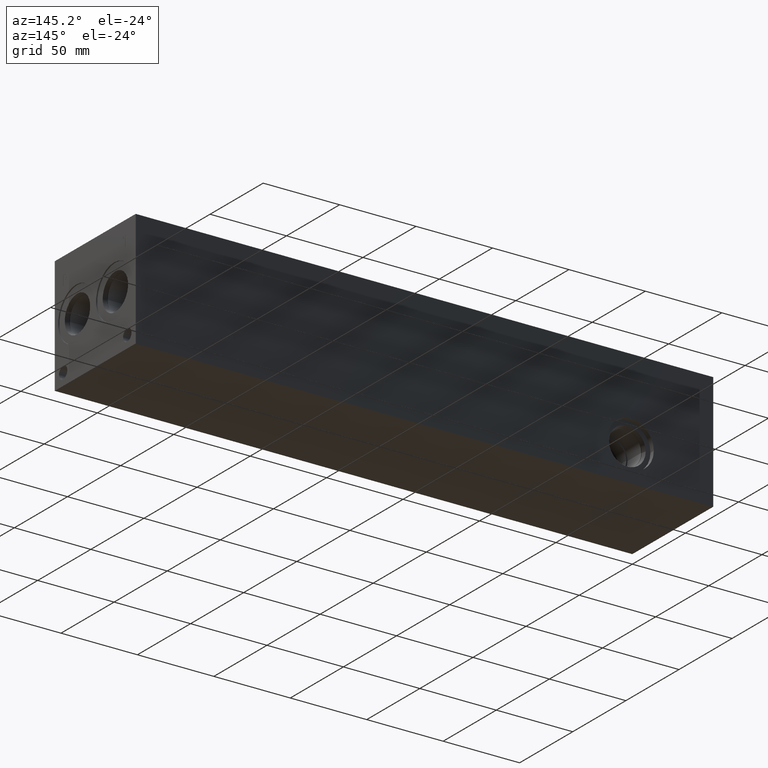
[diagram: clean part render]
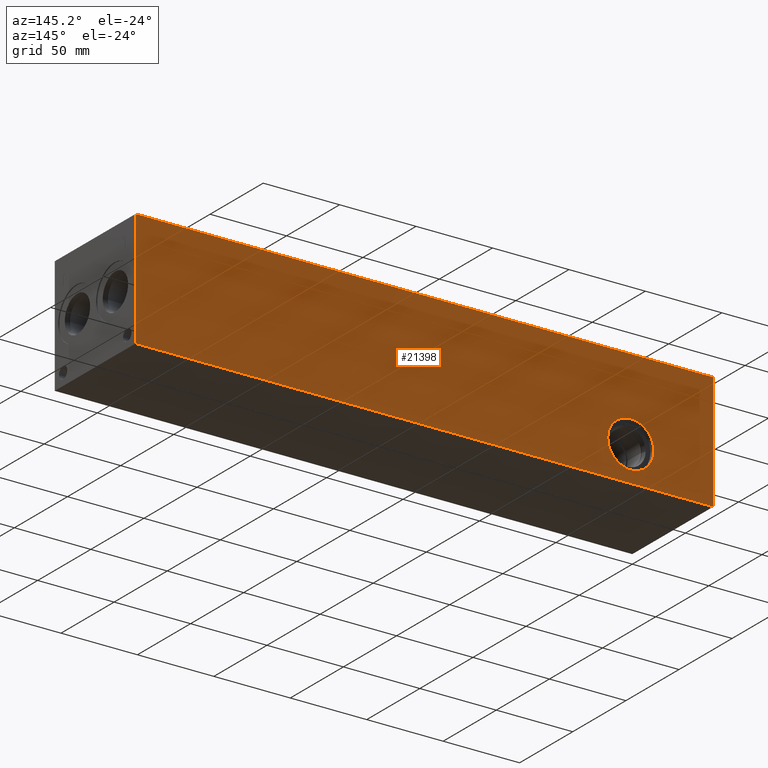
[diagram: same view with one face highlighted and labeled with its STEP entity id]
A machine part, auxiliary view. The second image highlights one B-rep face of the part: STEP entity #21398.
In plain terms, the highlighted planar face has unit normal (0, 1, 0).
Its self-contained STEP definition (entity closure, byte-faithful):
#442=CIRCLE('',#21976,15.08);
#443=CIRCLE('',#21977,15.08);
#1283=FACE_BOUND('',#4283,.T.);
#1876=PLANE('',#23049);
#2996=FACE_OUTER_BOUND('',#4282,.T.);
#4282=EDGE_LOOP('',(#19231,#19232,#19233,#19234));
#4283=EDGE_LOOP('',(#19235,#19236));
#5669=LINE('',#34758,#7422);
#5729=LINE('',#35031,#7482);
#6102=LINE('',#37372,#7855);
#6103=LINE('',#37373,#7856);
#7422=VECTOR('',#25290,10.);
#7482=VECTOR('',#25404,10.);
#7855=VECTOR('',#28073,10.);
#7856=VECTOR('',#28074,10.);
#9549=VERTEX_POINT('',#34755);
#9550=VERTEX_POINT('',#34757);
#9607=VERTEX_POINT('',#35027);
#9608=VERTEX_POINT('',#35029);
#9669=VERTEX_POINT('',#35208);
#9670=VERTEX_POINT('',#35209);
#12237=EDGE_CURVE('',#9549,#9550,#5669,.T.);
#12321=EDGE_CURVE('',#9607,#9608,#5729,.T.);
#12406=EDGE_CURVE('',#9669,#9670,#442,.T.);
#12407=EDGE_CURVE('',#9670,#9669,#443,.T.);
#13411=EDGE_CURVE('',#9549,#9607,#6102,.T.);
#13412=EDGE_CURVE('',#9550,#9608,#6103,.T.);
#19231=ORIENTED_EDGE('',*,*,#13411,.T.);
#19232=ORIENTED_EDGE('',*,*,#12321,.T.);
#19233=ORIENTED_EDGE('',*,*,#13412,.F.);
#19234=ORIENTED_EDGE('',*,*,#12237,.F.);
#19235=ORIENTED_EDGE('',*,*,#12406,.T.);
#19236=ORIENTED_EDGE('',*,*,#12407,.T.);
#21398=ADVANCED_FACE('',(#2996,#1283),#1876,.T.);
#21976=AXIS2_PLACEMENT_3D('',#35210,#25595,#25596);
#21977=AXIS2_PLACEMENT_3D('',#35211,#25597,#25598);
#23049=AXIS2_PLACEMENT_3D('',#37371,#28071,#28072);
#25290=DIRECTION('',(0.,0.,1.));
#25404=DIRECTION('',(0.,0.,1.));
#25595=DIRECTION('center_axis',(0.,-1.,0.));
#25596=DIRECTION('ref_axis',(1.,0.,0.));
#25597=DIRECTION('center_axis',(0.,-1.,0.));
#25598=DIRECTION('ref_axis',(1.,0.,0.));
#28071=DIRECTION('center_axis',(0.,1.,0.));
#28072=DIRECTION('ref_axis',(-1.,0.,0.));
#28073=DIRECTION('',(-1.,0.,0.));
#28074=DIRECTION('',(-1.,0.,0.));
#34755=CARTESIAN_POINT('',(377.825,76.2,0.));
#34757=CARTESIAN_POINT('',(377.825,76.2,76.2));
#34758=CARTESIAN_POINT('',(377.825,76.2,0.));
#35027=CARTESIAN_POINT('',(0.,76.2,0.));
#35029=CARTESIAN_POINT('',(0.,76.2,76.2));
#35031=CARTESIAN_POINT('',(0.,76.2,0.));
#35208=CARTESIAN_POINT('',(69.055,76.2,23.0124));
#35209=CARTESIAN_POINT('',(38.895,76.2,23.0124));
#35210=CARTESIAN_POINT('Origin',(53.975,76.2,23.0124));
#35211=CARTESIAN_POINT('Origin',(53.975,76.2,23.0124));
#37371=CARTESIAN_POINT('Origin',(377.825,76.2,0.));
#37372=CARTESIAN_POINT('',(377.825,76.2,0.));
#37373=CARTESIAN_POINT('',(377.825,76.2,76.2));